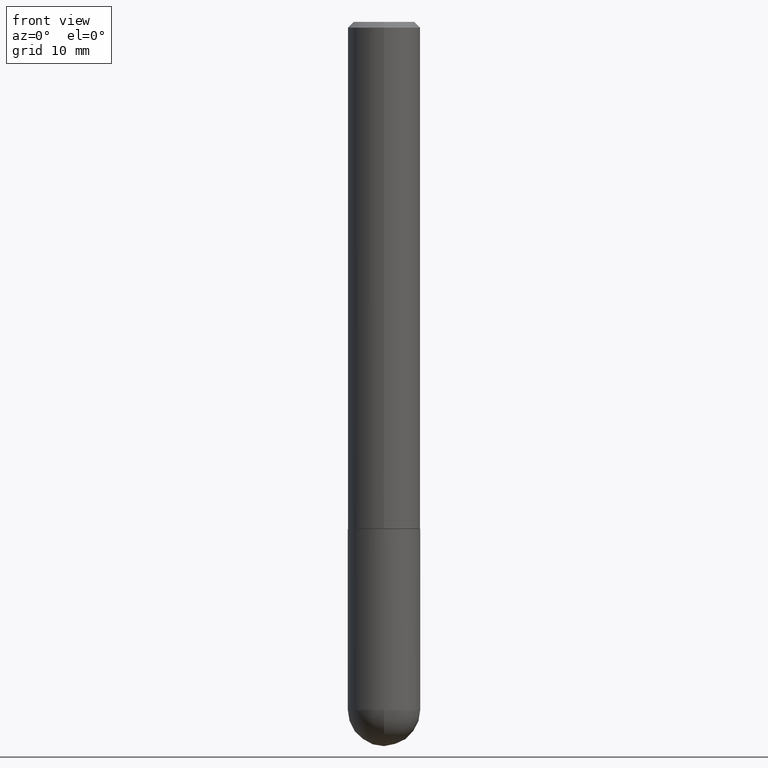
[diagram: clean part render]
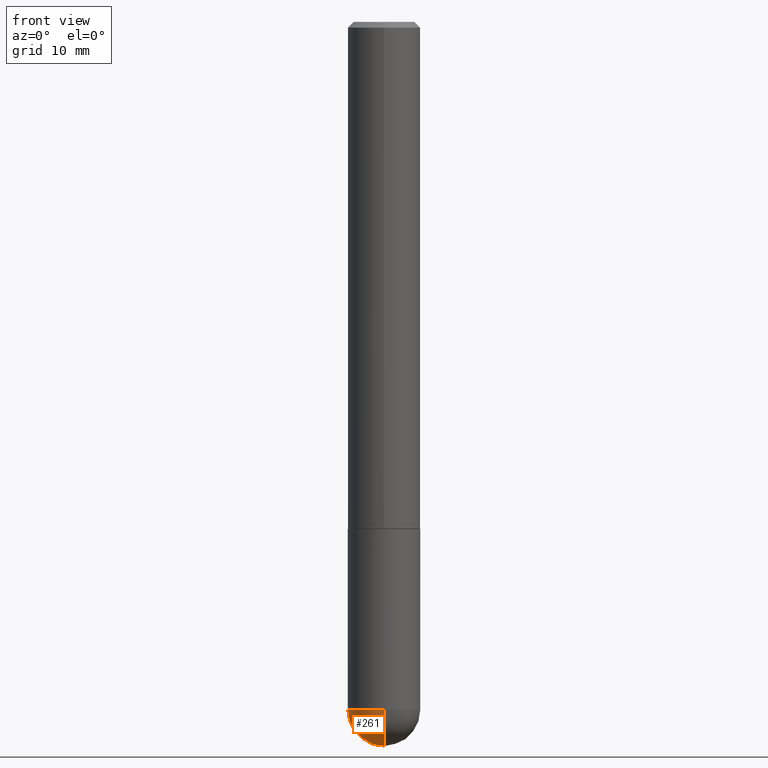
[diagram: same view with one face highlighted and labeled with its STEP entity id]
A machine part, front view. The second image highlights one B-rep face of the part: STEP entity #261.
In plain terms, the highlighted spherical surface has radius 3.175 mm.
Its self-contained STEP definition (entity closure, byte-faithful):
#18 = EDGE_CURVE ( 'NONE', #252, #134, #112, .T. ) ;
#33 = CARTESIAN_POINT ( 'NONE',  ( 5.807988414689700538E-29, -8.292268179752471696E-15, -2.375000000000000000 ) ) ;
#35 = CARTESIAN_POINT ( 'NONE',  ( -0.1250000000000000000, -6.313001841663864134E-15, -2.375000000000000000 ) ) ;
#36 = AXIS2_PLACEMENT_3D ( 'NONE', #205, #38, #174 ) ;
#38 = DIRECTION ( 'NONE',  ( 1.000000000000000000, -6.982962677686265922E-15, 4.883557194083112340E-29 ) ) ;
#40 = ORIENTED_EDGE ( 'NONE', *, *, #287, .T. ) ;
#61 = AXIS2_PLACEMENT_3D ( 'NONE', #148, #334, #271 ) ;
#68 = AXIS2_PLACEMENT_3D ( 'NONE', #179, #397, #142 ) ;
#69 = CARTESIAN_POINT ( 'NONE',  ( -8.881784197000694204E-16, -0.1250000000000086320, -2.374999999999999556 ) ) ;
#74 = VERTEX_POINT ( 'NONE', #234 ) ;
#79 = CIRCLE ( 'NONE', #311, 0.1250000000000001943 ) ;
#81 = DIRECTION ( 'NONE',  ( -1.000000000000000000, 7.105427357601001070E-15, -4.926315508542082329E-29 ) ) ;
#82 = EDGE_CURVE ( 'NONE', #74, #252, #175, .T. ) ;
#99 = AXIS2_PLACEMENT_3D ( 'NONE', #33, #191, #392 ) ;
#109 = SPHERICAL_SURFACE ( 'NONE', #68, 0.1250000000000001943 ) ;
#112 = CIRCLE ( 'NONE', #61, 0.1250000000000000000 ) ;
#113 = FACE_OUTER_BOUND ( 'NONE', #236, .T. ) ;
#134 = VERTEX_POINT ( 'NONE', #35 ) ;
#139 = CARTESIAN_POINT ( 'NONE',  ( 8.728703347108403340E-16, 0.1249999999999915623, -2.375000000000000888 ) ) ;
#142 = DIRECTION ( 'NONE',  ( 6.982962677686265922E-15, 1.000000000000000000, -4.370956789862814839E-15 ) ) ;
#148 = CARTESIAN_POINT ( 'NONE',  ( 5.807988414689700538E-29, -8.292268179752471696E-15, -2.375000000000000000 ) ) ;
#154 = VERTEX_POINT ( 'NONE', #69 ) ;
#174 = DIRECTION ( 'NONE',  ( 6.982962677686265133E-15, 1.000000000000000000, 0.000000000000000000 ) ) ;
#175 = CIRCLE ( 'NONE', #36, 0.1250000000000001943 ) ;
#179 = CARTESIAN_POINT ( 'NONE',  ( 5.476868636775814291E-29, -8.766450547892521992E-15, -2.375000000000000000 ) ) ;
#187 = ORIENTED_EDGE ( 'NONE', *, *, #354, .F. ) ;
#191 = DIRECTION ( 'NONE',  ( -2.445468806185136597E-29, 3.491481338843145583E-15, 1.000000000000000000 ) ) ;
#197 = ORIENTED_EDGE ( 'NONE', *, *, #18, .F. ) ;
#205 = CARTESIAN_POINT ( 'NONE',  ( 5.476868636775814291E-29, -8.766450547892521992E-15, -2.375000000000000000 ) ) ;
#214 = DIRECTION ( 'NONE',  ( -7.105427357601000281E-15, -1.000000000000000000, 0.000000000000000000 ) ) ;
#234 = CARTESIAN_POINT ( 'NONE',  ( 5.787897026856327965E-29, -9.195231672753244292E-15, -2.500000000000000444 ) ) ;
#236 = EDGE_LOOP ( 'NONE', ( #308, #40, #187, #197 ) ) ;
#239 = CIRCLE ( 'NONE', #99, 0.1250000000000000000 ) ;
#252 = VERTEX_POINT ( 'NONE', #139 ) ;
#261 = ADVANCED_FACE ( 'NONE', ( #113 ), #109, .T. ) ;
#271 = DIRECTION ( 'NONE',  ( 1.000000000000000000, -6.982962677686270655E-15, 0.000000000000000000 ) ) ;
#287 = EDGE_CURVE ( 'NONE', #74, #154, #79, .T. ) ;
#303 = CARTESIAN_POINT ( 'NONE',  ( 5.476868636775814291E-29, -8.766450547892521992E-15, -2.375000000000000000 ) ) ;
#308 = ORIENTED_EDGE ( 'NONE', *, *, #82, .F. ) ;
#311 = AXIS2_PLACEMENT_3D ( 'NONE', #303, #81, #214 ) ;
#334 = DIRECTION ( 'NONE',  ( -2.445468806185136597E-29, 3.491481338843145583E-15, 1.000000000000000000 ) ) ;
#354 = EDGE_CURVE ( 'NONE', #134, #154, #239, .T. ) ;
#392 = DIRECTION ( 'NONE',  ( 1.000000000000000000, -6.982962677686270655E-15, 0.000000000000000000 ) ) ;
#397 = DIRECTION ( 'NONE',  ( -1.000000000000000000, 6.982962677686265922E-15, -4.883557194083112901E-29 ) ) ;